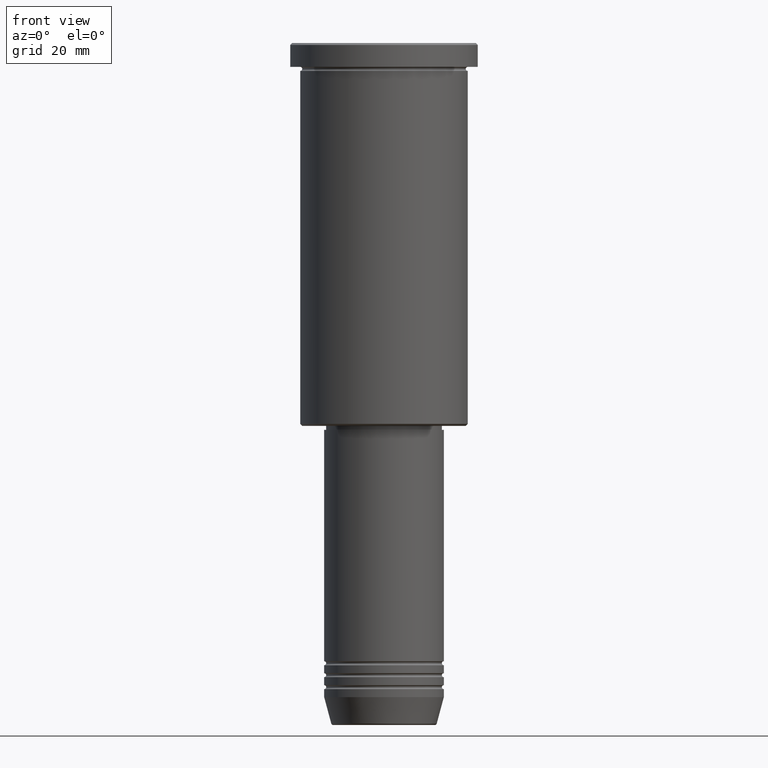
[diagram: clean part render]
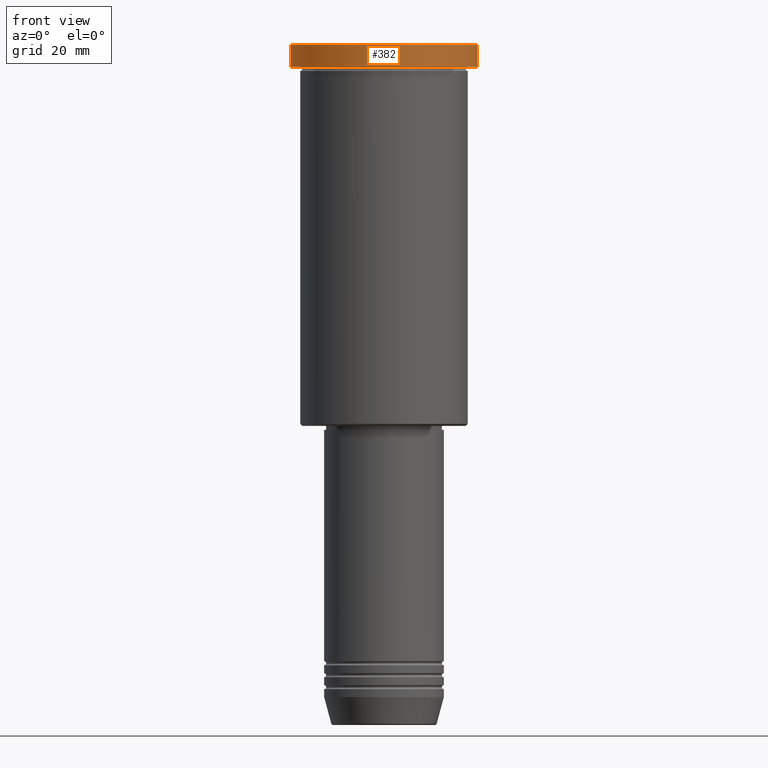
[diagram: same view with one face highlighted and labeled with its STEP entity id]
A machine part, front view. The second image highlights one B-rep face of the part: STEP entity #382.
In plain terms, the highlighted cylindrical surface (partial cylindrical patch) has radius 23.5 mm, axis along (-0, -0, 1).
Its self-contained STEP definition (entity closure, byte-faithful):
#25 = VERTEX_POINT ( 'NONE', #713 ) ;
#34 = ORIENTED_EDGE ( 'NONE', *, *, #368, .T. ) ;
#41 = CARTESIAN_POINT ( 'NONE',  ( 0.000000000000000000, 0.000000000000000000, -0.4999999999999726885 ) ) ;
#51 = ORIENTED_EDGE ( 'NONE', *, *, #1113, .T. ) ;
#100 = LINE ( 'NONE', #619, #899 ) ;
#130 = CARTESIAN_POINT ( 'NONE',  ( 23.50000000000000000, 0.000000000000000000, -5.999999999999994671 ) ) ;
#142 = CYLINDRICAL_SURFACE ( 'NONE', #302, 23.50000000000000000 ) ;
#155 = AXIS2_PLACEMENT_3D ( 'NONE', #1161, #235, #885 ) ;
#162 = DIRECTION ( 'NONE',  ( -0.000000000000000000, -0.000000000000000000, 1.000000000000000000 ) ) ;
#177 = AXIS2_PLACEMENT_3D ( 'NONE', #41, #689, #679 ) ;
#233 = ORIENTED_EDGE ( 'NONE', *, *, #525, .F. ) ;
#235 = DIRECTION ( 'NONE',  ( -0.000000000000000000, -0.000000000000000000, 1.000000000000000000 ) ) ;
#256 = DIRECTION ( 'NONE',  ( -0.000000000000000000, -0.000000000000000000, 1.000000000000000000 ) ) ;
#278 = CARTESIAN_POINT ( 'NONE',  ( 23.50000000000000000, 0.000000000000000000, 0.000000000000000000 ) ) ;
#302 = AXIS2_PLACEMENT_3D ( 'NONE', #792, #162, #333 ) ;
#306 = CIRCLE ( 'NONE', #177, 23.50000000000000000 ) ;
#307 = EDGE_LOOP ( 'NONE', ( #233, #34, #1020, #51 ) ) ;
#333 = DIRECTION ( 'NONE',  ( 1.000000000000000000, 0.000000000000000000, 0.000000000000000000 ) ) ;
#368 = EDGE_CURVE ( 'NONE', #423, #857, #1049, .T. ) ;
#382 = ADVANCED_FACE ( 'NONE', ( #514 ), #142, .T. ) ;
#423 = VERTEX_POINT ( 'NONE', #801 ) ;
#514 = FACE_OUTER_BOUND ( 'NONE', #307, .T. ) ;
#525 = EDGE_CURVE ( 'NONE', #423, #25, #100, .T. ) ;
#546 = VERTEX_POINT ( 'NONE', #1104 ) ;
#561 = DIRECTION ( 'NONE',  ( -0.000000000000000000, -0.000000000000000000, 1.000000000000000000 ) ) ;
#619 = CARTESIAN_POINT ( 'NONE',  ( -23.50000000000000000, 2.877919977996280320E-15, 0.000000000000000000 ) ) ;
#679 = DIRECTION ( 'NONE',  ( 1.000000000000000000, 0.000000000000000000, 0.000000000000000000 ) ) ;
#689 = DIRECTION ( 'NONE',  ( 0.000000000000000000, 0.000000000000000000, -1.000000000000000000 ) ) ;
#712 = VECTOR ( 'NONE', #561, 1000.000000000000000 ) ;
#713 = CARTESIAN_POINT ( 'NONE',  ( -23.50000000000000000, 2.877919977996280320E-15, -0.4999999999999726885 ) ) ;
#751 = LINE ( 'NONE', #278, #712 ) ;
#792 = CARTESIAN_POINT ( 'NONE',  ( 0.000000000000000000, 0.000000000000000000, 0.000000000000000000 ) ) ;
#801 = CARTESIAN_POINT ( 'NONE',  ( -23.50000000000000000, 2.877919977996280320E-15, -5.999999999999994671 ) ) ;
#857 = VERTEX_POINT ( 'NONE', #130 ) ;
#885 = DIRECTION ( 'NONE',  ( 1.000000000000000000, 0.000000000000000000, 0.000000000000000000 ) ) ;
#899 = VECTOR ( 'NONE', #256, 1000.000000000000000 ) ;
#1020 = ORIENTED_EDGE ( 'NONE', *, *, #1038, .T. ) ;
#1038 = EDGE_CURVE ( 'NONE', #857, #546, #751, .T. ) ;
#1049 = CIRCLE ( 'NONE', #155, 23.50000000000000000 ) ;
#1104 = CARTESIAN_POINT ( 'NONE',  ( 23.50000000000000000, 0.000000000000000000, -0.4999999999999726885 ) ) ;
#1113 = EDGE_CURVE ( 'NONE', #546, #25, #306, .T. ) ;
#1161 = CARTESIAN_POINT ( 'NONE',  ( 0.000000000000000000, 0.000000000000000000, -5.999999999999994671 ) ) ;